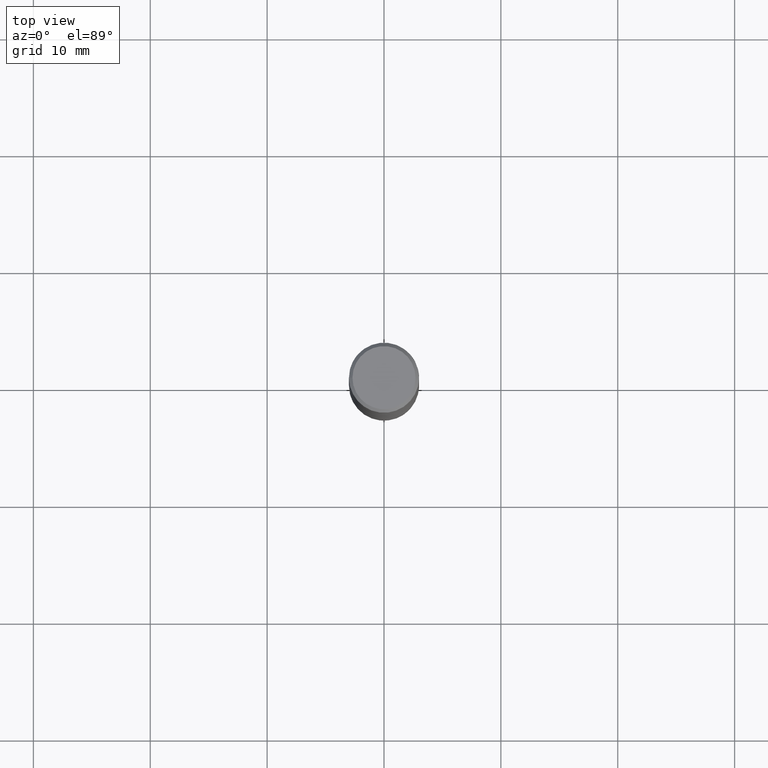
[diagram: clean part render]
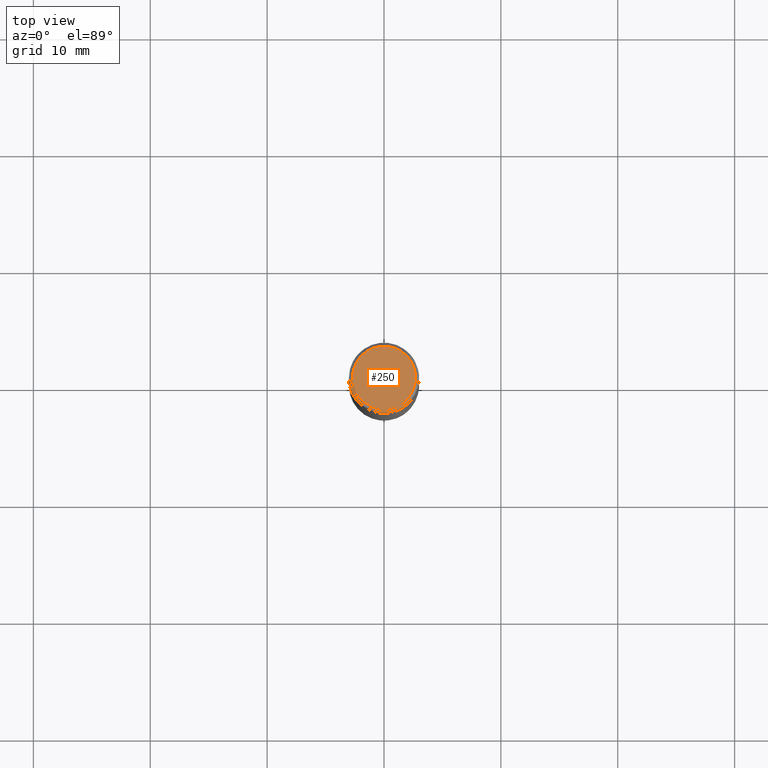
[diagram: same view with one face highlighted and labeled with its STEP entity id]
A machine part, top view. The second image highlights one B-rep face of the part: STEP entity #250.
In plain terms, the highlighted planar face has unit normal (-0, -0, 1).
Its self-contained STEP definition (entity closure, byte-faithful):
#210 = VERTEX_POINT('', #211);
#211 = CARTESIAN_POINT('', (-2.7, 1.65327317884893E-16, 0.));
#217 = EDGE_CURVE('', #210, #210, #218, .T.);
#218 = CIRCLE('', #219, 2.7);
#219 = AXIS2_PLACEMENT_3D('', #220, #221, #222);
#220 = CARTESIAN_POINT('', (6.74700668366753E-80, -4.13135006948962E-96, 0.));
#221 = DIRECTION('', (3.74939945665464E-33, 6.12323399573677E-17, -1.));
#222 = DIRECTION('', (-1., 6.12323399573677E-17, 0.));
#250 = ADVANCED_FACE('', (#251), #254, .T.);
#251 = FACE_OUTER_BOUND('', #252, .T.);
#252 = EDGE_LOOP('', (#253));
#253 = ORIENTED_EDGE('', *, *, #217, .F.);
#254 = PLANE('', #255);
#255 = AXIS2_PLACEMENT_3D('', #256, #257, #258);
#256 = CARTESIAN_POINT('', (4.20021428024809, -4.20021428024809, 1.07962619604318E-14));
#257 = DIRECTION('', (-2.63163976207445E-15, -6.12323399573677E-17, 1.));
#258 = DIRECTION('', (0., 1., 6.12323399573677E-17));